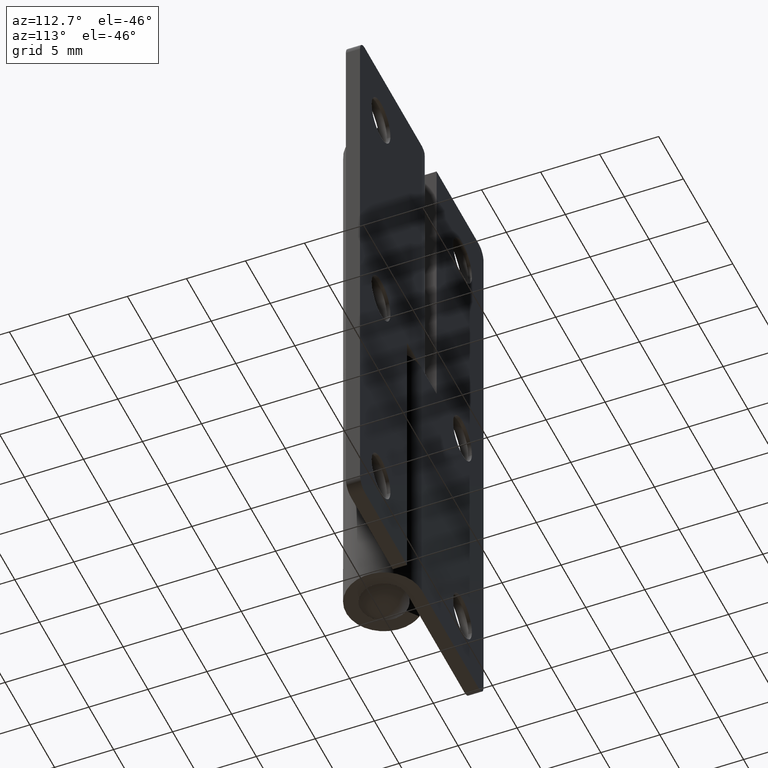
[diagram: clean part render]
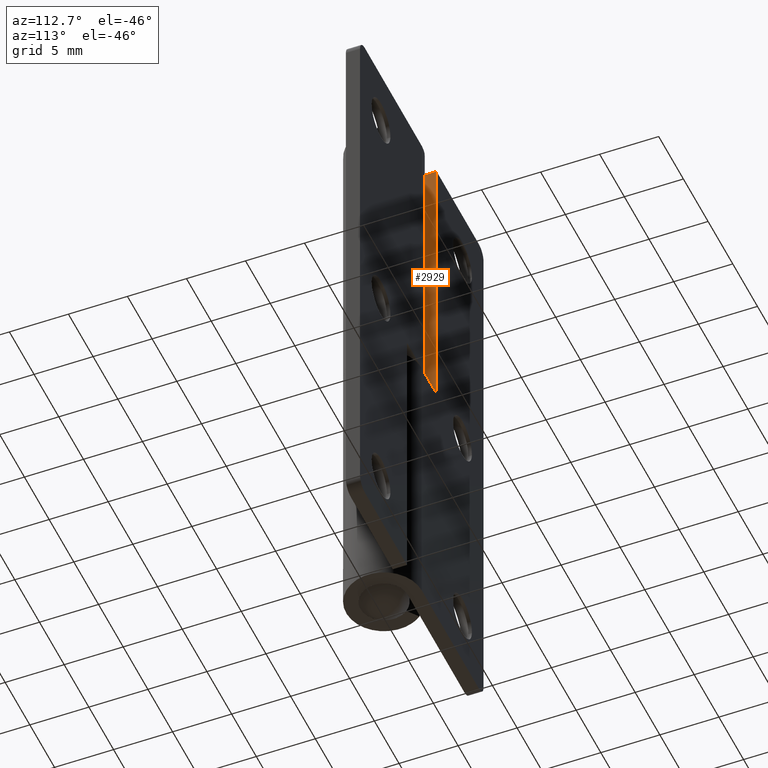
[diagram: same view with one face highlighted and labeled with its STEP entity id]
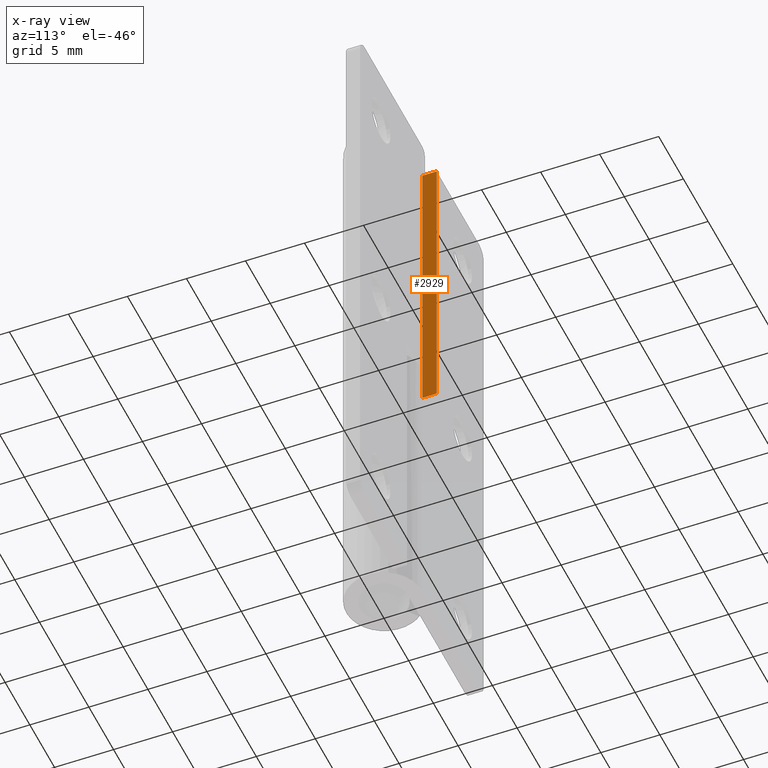
[diagram: x-ray of the same camera — body ghosted, the highlighted face saturated]
A machine part, auxiliary view. The second image highlights one B-rep face of the part: STEP entity #2929.
The next image is the same camera in x-ray: the body ghosted, the highlighted face saturated — about 0% of this face is hidden behind the body in this view.
In plain terms, the highlighted face is a freeform B-spline surface patch.
Its self-contained STEP definition (entity closure, byte-faithful):
#2894=CARTESIAN_POINT('',(-3.0,1.940059952375837,51.248749951545150));
#2895=CARTESIAN_POINT('',(-3.0,1.940059952375837,23.751249377902599));
#2896=CARTESIAN_POINT('',(-3.0,3.259941079810654,51.248749951545150));
#2897=CARTESIAN_POINT('',(-3.0,3.259941079810654,23.751249377902599));
#2898=B_SPLINE_SURFACE_WITH_KNOTS('',1,1,((#2894,#2896),(#2895,#2897)),.UNSPECIFIED.,.F.,.F.,.U.,(2,2),(2,2),(0.0,27.497500573642551),(0.041708334948495,0.958291687403247),.UNSPECIFIED.);
#2899=CARTESIAN_POINT('',(-3.0,2.0,25.0));
#2900=VERTEX_POINT('',#2899);
#2901=CARTESIAN_POINT('',(-3.0,2.0,50.0));
#2902=VERTEX_POINT('',#2901);
#2903=CARTESIAN_POINT('',(-3.0,2.0,25.0));
#2904=CARTESIAN_POINT('',(-3.0,2.0,50.0));
#2905=QUASI_UNIFORM_CURVE('',1,(#2903,#2904),.UNSPECIFIED.,.F.,.U.);
#2906=EDGE_CURVE('',#2900,#2902,#2905,.T.);
#2907=ORIENTED_EDGE('',*,*,#2906,.F.);
#2908=CARTESIAN_POINT('',(-3.0,3.200000999999955,25.0));
#2909=VERTEX_POINT('',#2908);
#2910=CARTESIAN_POINT('',(-3.0,3.200000999999955,25.0));
#2911=CARTESIAN_POINT('',(-3.0,2.0,25.0));
#2912=QUASI_UNIFORM_CURVE('',1,(#2910,#2911),.UNSPECIFIED.,.F.,.U.);
#2913=EDGE_CURVE('',#2909,#2900,#2912,.T.);
#2914=ORIENTED_EDGE('',*,*,#2913,.F.);
#2915=CARTESIAN_POINT('',(-3.0,3.200000999999955,50.0));
#2916=VERTEX_POINT('',#2915);
#2917=CARTESIAN_POINT('',(-3.0,3.200000999999955,25.0));
#2918=CARTESIAN_POINT('',(-3.0,3.200000999999955,50.0));
#2919=QUASI_UNIFORM_CURVE('',1,(#2917,#2918),.UNSPECIFIED.,.F.,.U.);
#2920=EDGE_CURVE('',#2909,#2916,#2919,.T.);
#2921=ORIENTED_EDGE('',*,*,#2920,.T.);
#2922=CARTESIAN_POINT('',(-3.0,3.200000999999955,50.0));
#2923=CARTESIAN_POINT('',(-3.0,2.0,50.0));
#2924=QUASI_UNIFORM_CURVE('',1,(#2922,#2923),.UNSPECIFIED.,.F.,.U.);
#2925=EDGE_CURVE('',#2916,#2902,#2924,.T.);
#2926=ORIENTED_EDGE('',*,*,#2925,.T.);
#2927=EDGE_LOOP('',(#2907,#2914,#2921,#2926));
#2928=FACE_OUTER_BOUND('',#2927,.T.);
#2929=ADVANCED_FACE('',(#2928),#2898,.T.);